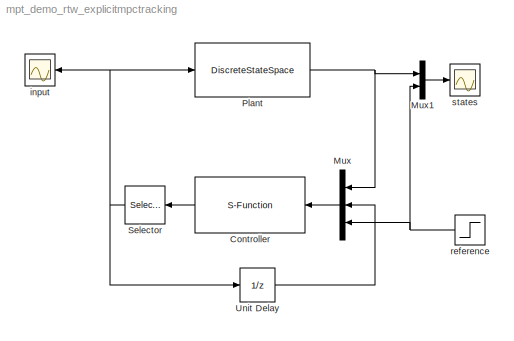
MODEL mpt_demo_rtw_explicitmpctracking
KIND model
BLOCK [S-Function] Controller
  EnableBusSupport = off
  FunctionName = EMPCcontroller_sfunc
  Ports = [1, 1]
  SID = 21
BLOCK [Mux] Mux
  DisplayOption = bar
  Inputs = 3
  Ports = [3, 1]
  SID = 22
BLOCK [Mux] Mux1
  DisplayOption = bar
  Inputs = 2
  Ports = [2, 1]
  SID = 23
BLOCK [DiscreteStateSpace] Plant
  A = [   0.5403   -0.8415; 0.8415    0.5403];
  B = [ -0.4597; 0.8415];
  C = eye(2)
  D = [0;0]
  SID = 24
  X0 = [0;0]
BLOCK [Selector] Selector
  IndexOptions = Index vector (dialog)
  Indices = 1
  InputPortWidth = 4
  OutputSizes = 1
  Ports = [1, 1]
  SID = 25
BLOCK [UnitDelay] Unit Delay
  InputProcessing = Elements as channels (sample based)
  SID = 26
  SampleTime = -1
BLOCK [Scope] input
  DataFormat = StructureWithTime
  Floating = off
  NumInputPorts = 1
  Ports = [1]
  SID = 27
  SampleTime = 0
  SaveName = ScopeData1
  ShowLegends = off
BLOCK [Step] reference
  SID = 28
  SampleTime = 0
BLOCK [Scope] states
  DataFormat = StructureWithTime
  Floating = off
  NumInputPorts = 1
  Ports = [1]
  SID = 29
  SampleTime = 0
  ShowLegends = off
LINE Controller:1 -> Selector:1
LINE Mux1:1 -> states:1
LINE Mux:1 -> Controller:1
NET Plant:1 -> Mux1:1, Mux:1
NET Selector:1 -> Plant:1, Unit Delay:1, input:1
LINE Unit Delay:1 -> Mux:2
NET reference:1 -> Mux1:2, Mux:3
note: NET lines group one-source signal fan-out (src -> all destinations, sorted); 1:1 wires keep LINE
